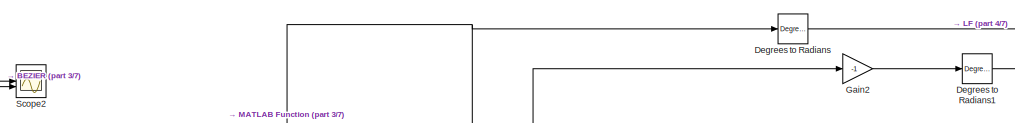
[diagram: root canvas - part 1/7, top center region]
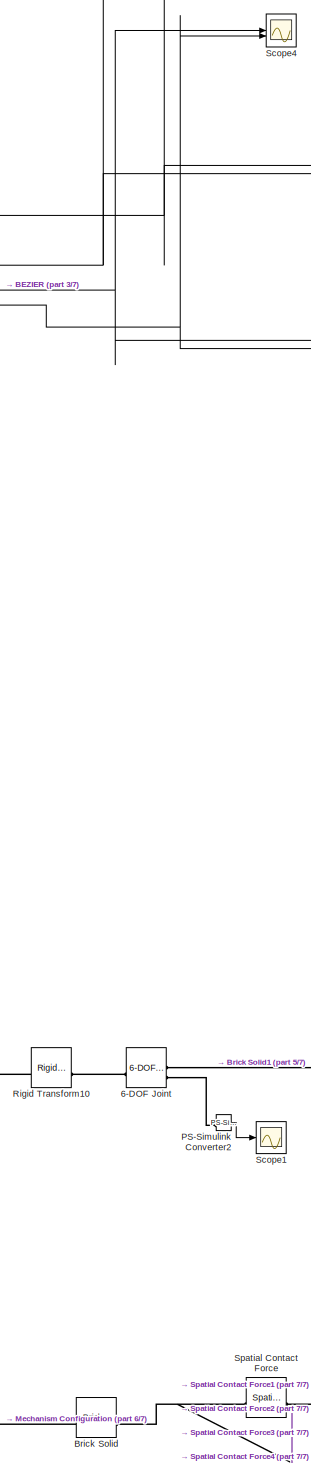
[diagram: root canvas - part 2/7, middle left region]
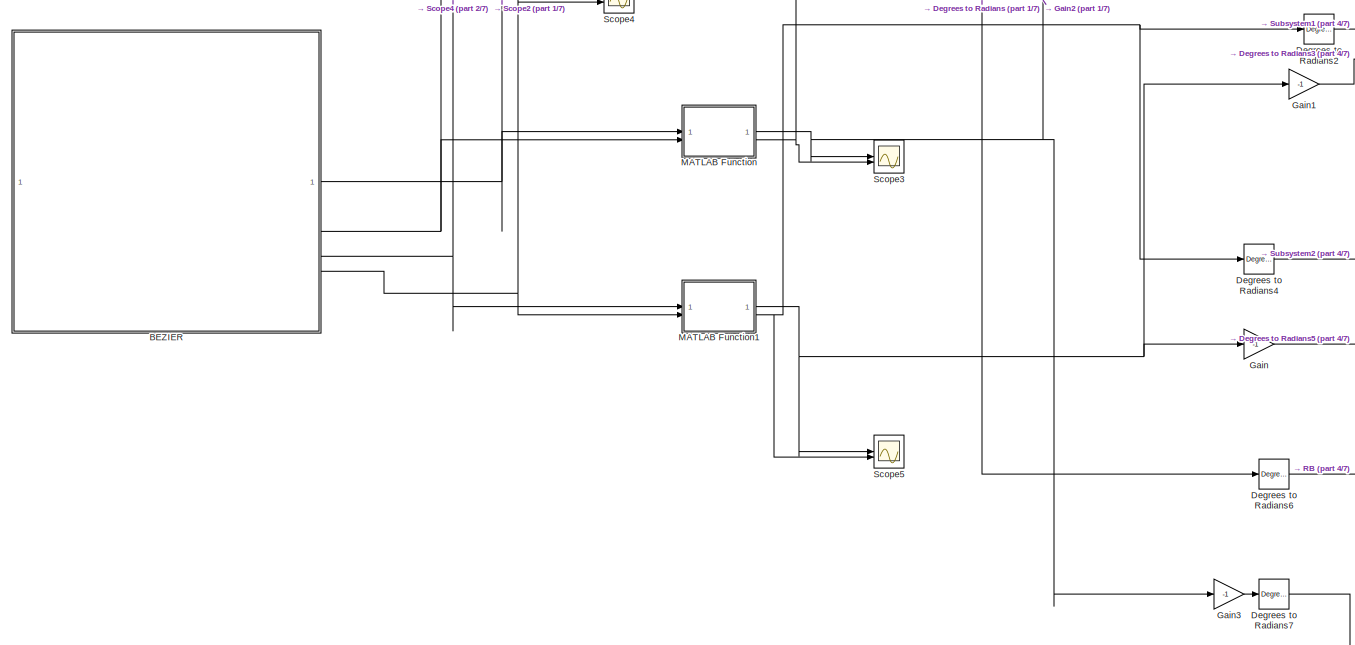
[diagram: root canvas - part 3/7, top left region]
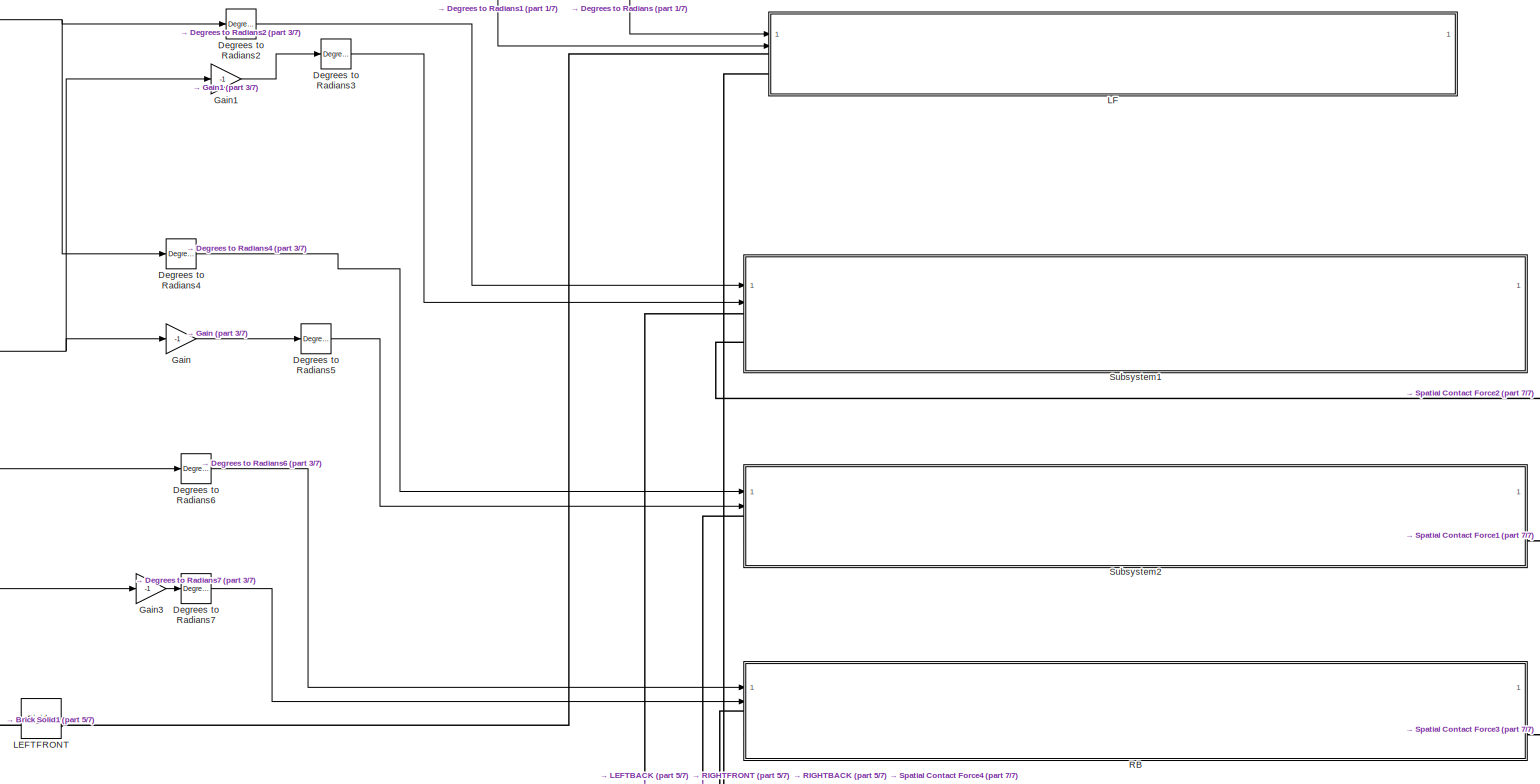
[diagram: root canvas - part 4/7, top center region]
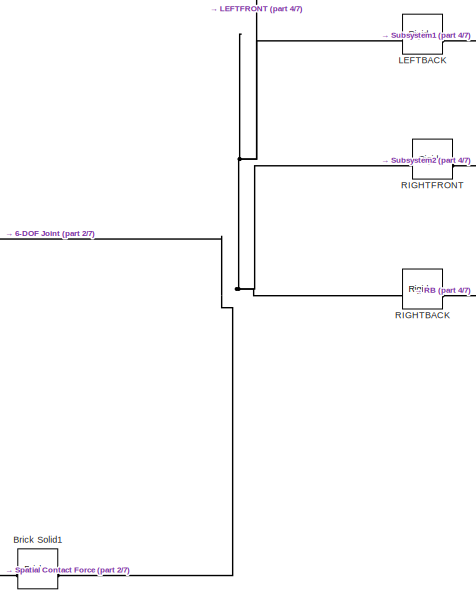
[diagram: root canvas - part 5/7, middle left region]
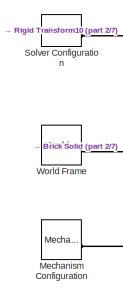
[diagram: root canvas - part 6/7, middle left region]
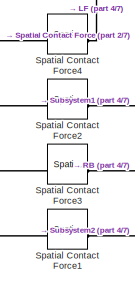
[diagram: root canvas - part 7/7, bottom center region]
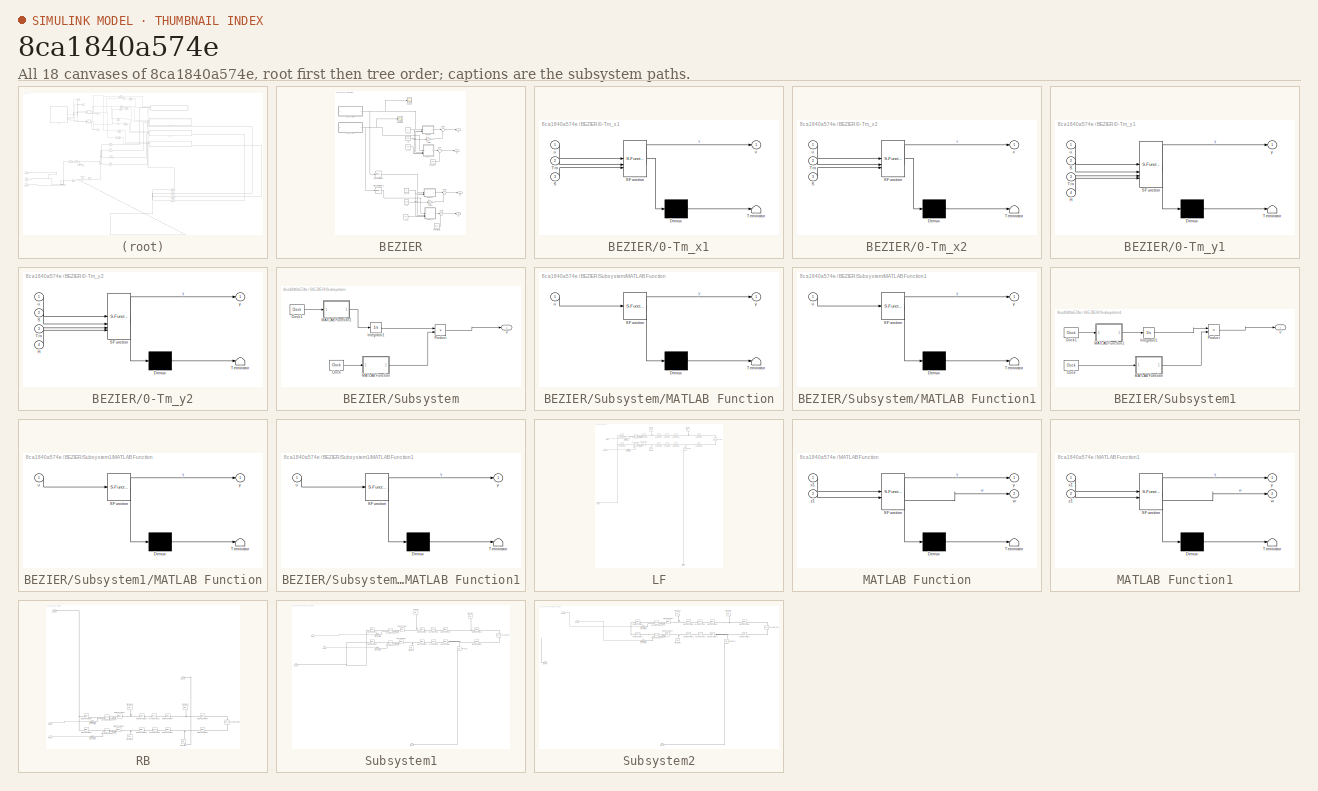
[diagram: thumbnail index - all 18 canvases of the model, root first then tree order]
MODEL slx_8ca1840a574e
KIND model
CONFIG AbsTol = auto
CONFIG EnableMultiTasking = off
CONFIG FixedStep = auto
CONFIG MaxStep = auto
CONFIG MinStep = auto
CONFIG RelTol = 1e-3
CONFIG SampleTimeConstraint = Unconstrained
CONFIG SolverName = VariableStepAuto
CONFIG StartTime = 0.0
CONFIG StopTime = 80.0
BLOCK [Reference] 6-DOF Joint  REF=sm_lib/Joints/6-DOF Joint
  SourceBlock = sm_lib/Joints/6-DOF Joint
  SourceType = 6-DOF Joint
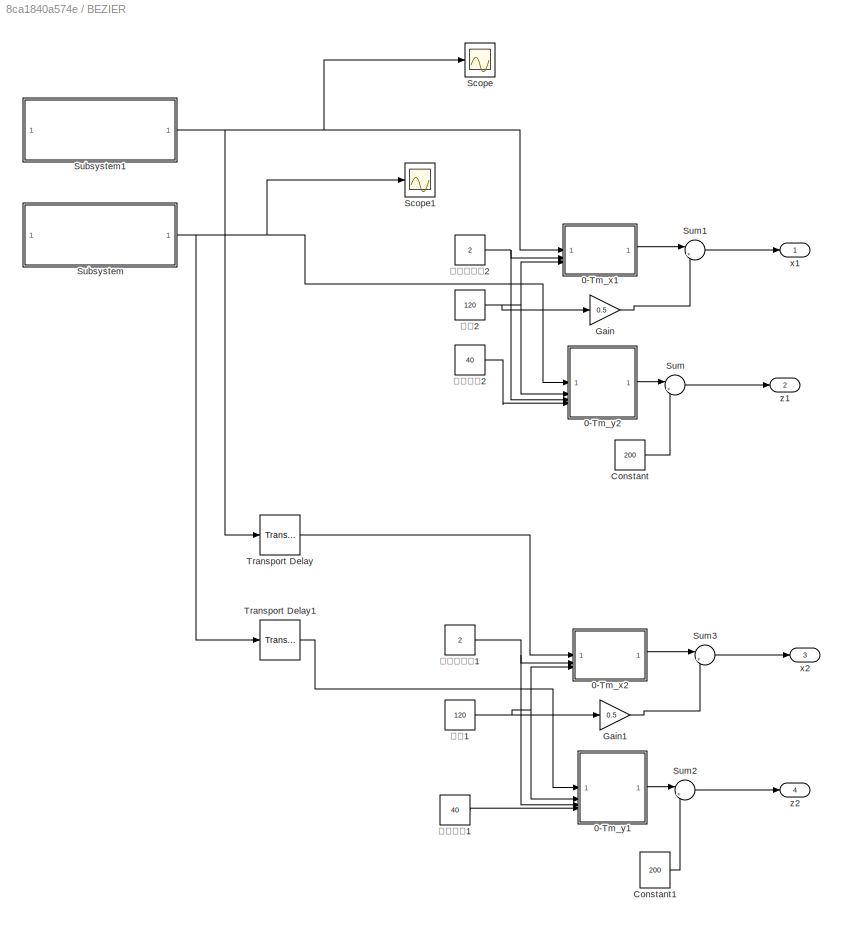
BLOCK [SubSystem] BEZIER
BLOCK [SubSystem] BEZIER/0-Tm_x1
  ErrorFcn = Stateflow.Translate.translate
  PermitHierarchicalResolution = ExplicitOnly
  SFBlockType = MATLAB Function
  TreatAsAtomicUnit = on
BLOCK [Demux] BEZIER/0-Tm_x1/ Demux 
  Outputs = 1
BLOCK [S-Function] BEZIER/0-Tm_x1/ SFunction 
  EnableBusSupport = on
  FunctionName = sf_sfun
  PortCounts = [3 2]
  SFcnIsStateOwnerBlock = off
  SFunctionDeploymentMode = off
  Tag = Stateflow S-Function 1
BLOCK [Terminator] BEZIER/0-Tm_x1/ Terminator 
BLOCK [Inport] BEZIER/0-Tm_x1/S
  Port = 3
BLOCK [Inport] BEZIER/0-Tm_x1/Tm
  Port = 2
BLOCK [Inport] BEZIER/0-Tm_x1/u
BLOCK [Outport] BEZIER/0-Tm_x1/x
  VectorParamsAs1DForOutWhenUnconnected = off
BLOCK [SubSystem] BEZIER/0-Tm_x2
  ErrorFcn = Stateflow.Translate.translate
  PermitHierarchicalResolution = ExplicitOnly
  SFBlockType = MATLAB Function
  TreatAsAtomicUnit = on
BLOCK [Demux] BEZIER/0-Tm_x2/ Demux 
  Outputs = 1
BLOCK [S-Function] BEZIER/0-Tm_x2/ SFunction 
  EnableBusSupport = on
  FunctionName = sf_sfun
  PortCounts = [3 2]
  SFcnIsStateOwnerBlock = off
  SFunctionDeploymentMode = off
  Tag = Stateflow S-Function 4
BLOCK [Terminator] BEZIER/0-Tm_x2/ Terminator 
BLOCK [Inport] BEZIER/0-Tm_x2/S
  Port = 3
BLOCK [Inport] BEZIER/0-Tm_x2/Tm
  Port = 2
BLOCK [Inport] BEZIER/0-Tm_x2/u
BLOCK [Outport] BEZIER/0-Tm_x2/x
  VectorParamsAs1DForOutWhenUnconnected = off
BLOCK [SubSystem] BEZIER/0-Tm_y1
  ErrorFcn = Stateflow.Translate.translate
  PermitHierarchicalResolution = ExplicitOnly
  SFBlockType = MATLAB Function
  TreatAsAtomicUnit = on
BLOCK [Demux] BEZIER/0-Tm_y1/ Demux 
  Outputs = 1
BLOCK [S-Function] BEZIER/0-Tm_y1/ SFunction 
  EnableBusSupport = on
  FunctionName = sf_sfun
  PortCounts = [4 2]
  SFcnIsStateOwnerBlock = off
  SFunctionDeploymentMode = off
  Tag = Stateflow S-Function 5
BLOCK [Terminator] BEZIER/0-Tm_y1/ Terminator 
BLOCK [Inport] BEZIER/0-Tm_y1/H
  Port = 4
BLOCK [Inport] BEZIER/0-Tm_y1/S
  Port = 2
BLOCK [Inport] BEZIER/0-Tm_y1/Tm
  Port = 3
BLOCK [Inport] BEZIER/0-Tm_y1/u
BLOCK [Outport] BEZIER/0-Tm_y1/y
  VectorParamsAs1DForOutWhenUnconnected = off
BLOCK [SubSystem] BEZIER/0-Tm_y2
  ErrorFcn = Stateflow.Translate.translate
  PermitHierarchicalResolution = ExplicitOnly
  SFBlockType = MATLAB Function
  TreatAsAtomicUnit = on
BLOCK [Demux] BEZIER/0-Tm_y2/ Demux 
  Outputs = 1
BLOCK [S-Function] BEZIER/0-Tm_y2/ SFunction 
  EnableBusSupport = on
  FunctionName = sf_sfun
  PortCounts = [4 2]
  SFcnIsStateOwnerBlock = off
  SFunctionDeploymentMode = off
  Tag = Stateflow S-Function 2
BLOCK [Terminator] BEZIER/0-Tm_y2/ Terminator 
BLOCK [Inport] BEZIER/0-Tm_y2/H
  Port = 4
BLOCK [Inport] BEZIER/0-Tm_y2/S
  Port = 2
BLOCK [Inport] BEZIER/0-Tm_y2/Tm
  Port = 3
BLOCK [Inport] BEZIER/0-Tm_y2/u
BLOCK [Outport] BEZIER/0-Tm_y2/y
  VectorParamsAs1DForOutWhenUnconnected = off
BLOCK [Constant] BEZIER/Constant
  Value = 200
BLOCK [Constant] BEZIER/Constant1
  Value = 200
BLOCK [Gain] BEZIER/Gain
  Gain = 0.5
BLOCK [Gain] BEZIER/Gain1
  Gain = 0.5
BLOCK [Scope] BEZIER/Scope
  Floating = off
  NumInputPorts = 1
  ScopeSpecificationString = Simulink.scopes.TimeScopeBlockCfg('CurrentConfiguration', extmgr.ConfigurationSet(extmgr.Configuration('Core','General UI',true),extmgr.Configuration('Core','Source UI',true),extmgr.Configuration('Sources','WiredSimulink',true,'DataLoggingVariableName','ScopeData1'),extmgr.Configuration('Visuals','Time Domain',true,'SerializedDisplays',{struct('MinYLimReal','-2.5','MaxYLimReal','2.5','YLabelReal',...<+1412ch>
BLOCK [Scope] BEZIER/Scope1
  Floating = off
  NumInputPorts = 1
  ScopeSpecificationString = Simulink.scopes.TimeScopeBlockCfg('CurrentConfiguration', extmgr.ConfigurationSet(extmgr.Configuration('Core','General UI',true),extmgr.Configuration('Core','Source UI',true),extmgr.Configuration('Sources','WiredSimulink',true,'DataLoggingVariableName','ScopeData2'),extmgr.Configuration('Visuals','Time Domain',true,'SerializedDisplays',{struct('MinYLimReal','-2.5','MaxYLimReal','2.5','YLabelReal',...<+1412ch>
BLOCK [SubSystem] BEZIER/Subsystem
BLOCK [Reference] BEZIER/Subsystem/Clock  REF=simulink_extras/Flip Flops/Clock
  SourceBlock = simulink_extras/Flip Flops/Clock
  SourceType = Digital clock
BLOCK [Reference] BEZIER/Subsystem/Clock1  REF=simulink_extras/Flip Flops/Clock
  SourceBlock = simulink_extras/Flip Flops/Clock
  SourceType = Digital clock
BLOCK [Integrator] BEZIER/Subsystem/Integrator1
BLOCK [SubSystem] BEZIER/Subsystem/MATLAB Function
  ErrorFcn = Stateflow.Translate.translate
  PermitHierarchicalResolution = ExplicitOnly
  SFBlockType = MATLAB Function
  TreatAsAtomicUnit = on
BLOCK [Demux] BEZIER/Subsystem/MATLAB Function/ Demux 
  Outputs = 1
BLOCK [S-Function] BEZIER/Subsystem/MATLAB Function/ SFunction 
  EnableBusSupport = on
  FunctionName = sf_sfun
  PortCounts = [1 2]
  SFcnIsStateOwnerBlock = off
  SFunctionDeploymentMode = off
  Tag = Stateflow S-Function 17
BLOCK [Terminator] BEZIER/Subsystem/MATLAB Function/ Terminator 
BLOCK [Inport] BEZIER/Subsystem/MATLAB Function/u
BLOCK [Outport] BEZIER/Subsystem/MATLAB Function/y
  VectorParamsAs1DForOutWhenUnconnected = off
BLOCK [SubSystem] BEZIER/Subsystem/MATLAB Function1
  ErrorFcn = Stateflow.Translate.translate
  PermitHierarchicalResolution = ExplicitOnly
  SFBlockType = MATLAB Function
  TreatAsAtomicUnit = on
BLOCK [Demux] BEZIER/Subsystem/MATLAB Function1/ Demux 
  Outputs = 1
BLOCK [S-Function] BEZIER/Subsystem/MATLAB Function1/ SFunction 
  EnableBusSupport = on
  FunctionName = sf_sfun
  PortCounts = [1 2]
  SFcnIsStateOwnerBlock = off
  SFunctionDeploymentMode = off
  Tag = Stateflow S-Function 18
BLOCK [Terminator] BEZIER/Subsystem/MATLAB Function1/ Terminator 
BLOCK [Inport] BEZIER/Subsystem/MATLAB Function1/u
BLOCK [Outport] BEZIER/Subsystem/MATLAB Function1/y
  VectorParamsAs1DForOutWhenUnconnected = off
BLOCK [Product] BEZIER/Subsystem/Product
BLOCK [Outport] BEZIER/Subsystem/u
  VectorParamsAs1DForOutWhenUnconnected = off
BLOCK [SubSystem] BEZIER/Subsystem1
BLOCK [Reference] BEZIER/Subsystem1/Clock  REF=simulink_extras/Flip Flops/Clock
  SourceBlock = simulink_extras/Flip Flops/Clock
  SourceType = Digital clock
BLOCK [Reference] BEZIER/Subsystem1/Clock1  REF=simulink_extras/Flip Flops/Clock
  SourceBlock = simulink_extras/Flip Flops/Clock
  SourceType = Digital clock
BLOCK [Integrator] BEZIER/Subsystem1/Integrator1
BLOCK [SubSystem] BEZIER/Subsystem1/MATLAB Function
  ErrorFcn = Stateflow.Translate.translate
  PermitHierarchicalResolution = ExplicitOnly
  SFBlockType = MATLAB Function
  TreatAsAtomicUnit = on
BLOCK [Demux] BEZIER/Subsystem1/MATLAB Function/ Demux 
  Outputs = 1
BLOCK [S-Function] BEZIER/Subsystem1/MATLAB Function/ SFunction 
  EnableBusSupport = on
  FunctionName = sf_sfun
  PortCounts = [1 2]
  SFcnIsStateOwnerBlock = off
  SFunctionDeploymentMode = off
  Tag = Stateflow S-Function 19
BLOCK [Terminator] BEZIER/Subsystem1/MATLAB Function/ Terminator 
BLOCK [Inport] BEZIER/Subsystem1/MATLAB Function/u
BLOCK [Outport] BEZIER/Subsystem1/MATLAB Function/y
  VectorParamsAs1DForOutWhenUnconnected = off
BLOCK [SubSystem] BEZIER/Subsystem1/MATLAB Function1
  ErrorFcn = Stateflow.Translate.translate
  PermitHierarchicalResolution = ExplicitOnly
  SFBlockType = MATLAB Function
  TreatAsAtomicUnit = on
BLOCK [Demux] BEZIER/Subsystem1/MATLAB Function1/ Demux 
  Outputs = 1
BLOCK [S-Function] BEZIER/Subsystem1/MATLAB Function1/ SFunction 
  EnableBusSupport = on
  FunctionName = sf_sfun
  PortCounts = [1 2]
  SFcnIsStateOwnerBlock = off
  SFunctionDeploymentMode = off
  Tag = Stateflow S-Function 20
BLOCK [Terminator] BEZIER/Subsystem1/MATLAB Function1/ Terminator 
BLOCK [Inport] BEZIER/Subsystem1/MATLAB Function1/u
BLOCK [Outport] BEZIER/Subsystem1/MATLAB Function1/y
  VectorParamsAs1DForOutWhenUnconnected = off
BLOCK [Product] BEZIER/Subsystem1/Product
BLOCK [Outport] BEZIER/Subsystem1/u
  VectorParamsAs1DForOutWhenUnconnected = off
BLOCK [Sum] BEZIER/Sum
  Inputs = |+-
BLOCK [Sum] BEZIER/Sum1
  Inputs = |+-
BLOCK [Sum] BEZIER/Sum2
  Inputs = |+-
BLOCK [Sum] BEZIER/Sum3
  Inputs = |+-
BLOCK [TransportDelay] BEZIER/Transport Delay
  DelayTime = T
BLOCK [TransportDelay] BEZIER/Transport Delay1
  DelayTime = T
BLOCK [Outport] BEZIER/x1
  VectorParamsAs1DForOutWhenUnconnected = off
BLOCK [Outport] BEZIER/x2
  Port = 3
  VectorParamsAs1DForOutWhenUnconnected = off
BLOCK [Outport] BEZIER/z1
  Port = 2
  VectorParamsAs1DForOutWhenUnconnected = off
BLOCK [Outport] BEZIER/z2
  Port = 4
  VectorParamsAs1DForOutWhenUnconnected = off
BLOCK [Constant] BEZIER/抬腿高度1
  Value = 40
BLOCK [Constant] BEZIER/抬腿高度2
  Value = 40
BLOCK [Constant] BEZIER/摆动相周期1
  Value = 2
BLOCK [Constant] BEZIER/摆动相周期2
  Value = 2
BLOCK [Constant] BEZIER/步长1
  Value = 120
BLOCK [Constant] BEZIER/步长2
  Value = 120
BLOCK [Reference] Brick Solid  REF=sm_lib/Body Elements/Brick Solid
  NameLocation = top
  SourceBlock = sm_lib/Body Elements/Brick Solid
  SourceType = Brick Solid
BLOCK [Reference] Brick Solid1  REF=sm_lib/Body Elements/Brick Solid
  SourceBlock = sm_lib/Body Elements/Brick Solid
  SourceType = Brick Solid
BLOCK [Reference] Degrees to Radians  REF=simulink_extras/Transformations/Degrees to
Radians
  SourceBlock = simulink_extras/Transformations/Degrees to\nRadians
  SourceType = DegreesToRadians
BLOCK [Reference] Degrees to Radians1  REF=simulink_extras/Transformations/Degrees to
Radians
  SourceBlock = simulink_extras/Transformations/Degrees to\nRadians
  SourceType = DegreesToRadians
BLOCK [Reference] Degrees to Radians2  REF=simulink_extras/Transformations/Degrees to
Radians
  SourceBlock = simulink_extras/Transformations/Degrees to\nRadians
  SourceType = DegreesToRadians
BLOCK [Reference] Degrees to Radians3  REF=simulink_extras/Transformations/Degrees to
Radians
  SourceBlock = simulink_extras/Transformations/Degrees to\nRadians
  SourceType = DegreesToRadians
BLOCK [Reference] Degrees to Radians4  REF=simulink_extras/Transformations/Degrees to
Radians
  SourceBlock = simulink_extras/Transformations/Degrees to\nRadians
  SourceType = DegreesToRadians
BLOCK [Reference] Degrees to Radians5  REF=simulink_extras/Transformations/Degrees to
Radians
  SourceBlock = simulink_extras/Transformations/Degrees to\nRadians
  SourceType = DegreesToRadians
BLOCK [Reference] Degrees to Radians6  REF=simulink_extras/Transformations/Degrees to
Radians
  SourceBlock = simulink_extras/Transformations/Degrees to\nRadians
  SourceType = DegreesToRadians
BLOCK [Reference] Degrees to Radians7  REF=simulink_extras/Transformations/Degrees to
Radians
  SourceBlock = simulink_extras/Transformations/Degrees to\nRadians
  SourceType = DegreesToRadians
BLOCK [Gain] Gain
  Gain = -1
BLOCK [Gain] Gain1
  Gain = -1
BLOCK [Gain] Gain2
  Gain = -1
BLOCK [Gain] Gain3
  Gain = -1
BLOCK [Reference] LEFTBACK  REF=sm_lib/Frames and
Transforms/Rigid
Transform
  SourceBlock = sm_lib/Frames and\nTransforms/Rigid\nTransform
  SourceType = Rigid\nTransform
BLOCK [Reference] LEFTFRONT  REF=sm_lib/Frames and
Transforms/Rigid
Transform
  SourceBlock = sm_lib/Frames and\nTransforms/Rigid\nTransform
  SourceType = Rigid\nTransform
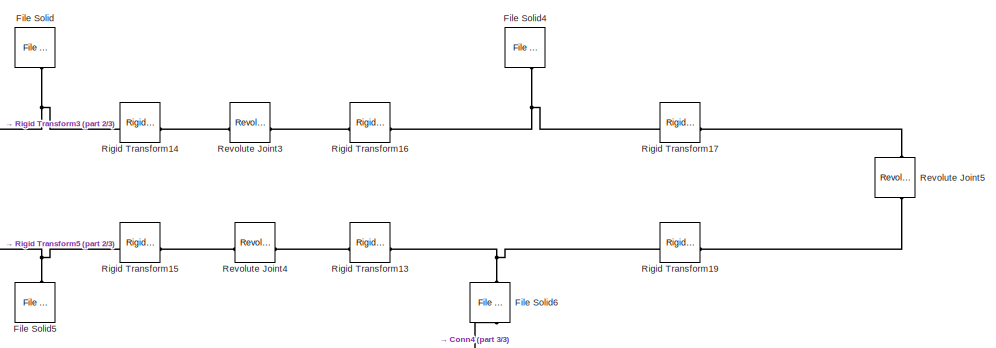
[diagram: LF - part 1/3, top right region]
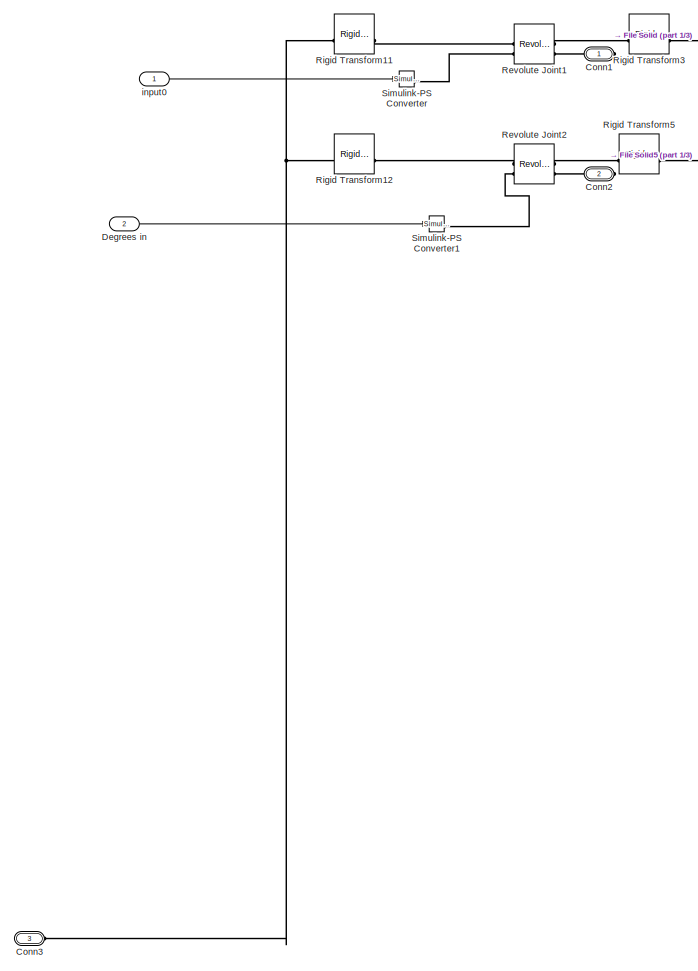
[diagram: LF - part 2/3, top left region]
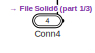
[diagram: LF - part 3/3, bottom right region]
BLOCK [SubSystem] LF
BLOCK [PMIOPort] LF/Conn1
  Side = Right
BLOCK [PMIOPort] LF/Conn2
  Port = 2
  Side = Right
BLOCK [PMIOPort] LF/Conn3
  Port = 3
  Side = Left
BLOCK [PMIOPort] LF/Conn4
  Port = 4
  Side = Left
BLOCK [Inport] LF/Degrees in
  Port = 2
BLOCK [Reference] LF/File Solid  REF=sm_lib/Body Elements/File Solid
  NameLocation = left
  SourceBlock = sm_lib/Body Elements/File Solid
  SourceType = File Solid
BLOCK [Reference] LF/File Solid4  REF=sm_lib/Body Elements/File Solid
  NameLocation = left
  SourceBlock = sm_lib/Body Elements/File Solid
  SourceType = File Solid
BLOCK [Reference] LF/File Solid5  REF=sm_lib/Body Elements/File Solid
  NameLocation = right
  SourceBlock = sm_lib/Body Elements/File Solid
  SourceType = File Solid
BLOCK [Reference] LF/File Solid6  REF=sm_lib/Body Elements/File Solid
  NameLocation = right
  SourceBlock = sm_lib/Body Elements/File Solid
  SourceType = File Solid
BLOCK [Reference] LF/Revolute Joint1  REF=sm_lib/Joints/Revolute Joint
  SourceBlock = sm_lib/Joints/Revolute Joint
  SourceType = Revolute Joint
BLOCK [Reference] LF/Revolute Joint2  REF=sm_lib/Joints/Revolute Joint
  SourceBlock = sm_lib/Joints/Revolute Joint
  SourceType = Revolute Joint
BLOCK [Reference] LF/Revolute Joint3  REF=sm_lib/Joints/Revolute Joint
  SourceBlock = sm_lib/Joints/Revolute Joint
  SourceType = Revolute Joint
BLOCK [Reference] LF/Revolute Joint4  REF=sm_lib/Joints/Revolute Joint
  SourceBlock = sm_lib/Joints/Revolute Joint
  SourceType = Revolute Joint
BLOCK [Reference] LF/Revolute Joint5  REF=sm_lib/Joints/Revolute Joint
  NameLocation = right
  SourceBlock = sm_lib/Joints/Revolute Joint
  SourceType = Revolute Joint
BLOCK [Reference] LF/Rigid Transform11  REF=sm_lib/Frames and
Transforms/Rigid
Transform
  SourceBlock = sm_lib/Frames and\nTransforms/Rigid\nTransform
  SourceType = Rigid\nTransform
BLOCK [Reference] LF/Rigid Transform12  REF=sm_lib/Frames and
Transforms/Rigid
Transform
  SourceBlock = sm_lib/Frames and\nTransforms/Rigid\nTransform
  SourceType = Rigid\nTransform
BLOCK [Reference] LF/Rigid Transform13  REF=sm_lib/Frames and
Transforms/Rigid
Transform
  SourceBlock = sm_lib/Frames and\nTransforms/Rigid\nTransform
  SourceType = Rigid\nTransform
BLOCK [Reference] LF/Rigid Transform14  REF=sm_lib/Frames and
Transforms/Rigid
Transform
  SourceBlock = sm_lib/Frames and\nTransforms/Rigid\nTransform
  SourceType = Rigid\nTransform
BLOCK [Reference] LF/Rigid Transform15  REF=sm_lib/Frames and
Transforms/Rigid
Transform
  SourceBlock = sm_lib/Frames and\nTransforms/Rigid\nTransform
  SourceType = Rigid\nTransform
BLOCK [Reference] LF/Rigid Transform16  REF=sm_lib/Frames and
Transforms/Rigid
Transform
  SourceBlock = sm_lib/Frames and\nTransforms/Rigid\nTransform
  SourceType = Rigid\nTransform
BLOCK [Reference] LF/Rigid Transform17  REF=sm_lib/Frames and
Transforms/Rigid
Transform
  SourceBlock = sm_lib/Frames and\nTransforms/Rigid\nTransform
  SourceType = Rigid\nTransform
BLOCK [Reference] LF/Rigid Transform19  REF=sm_lib/Frames and
Transforms/Rigid
Transform
  SourceBlock = sm_lib/Frames and\nTransforms/Rigid\nTransform
  SourceType = Rigid\nTransform
BLOCK [Reference] LF/Rigid Transform3  REF=sm_lib/Frames and
Transforms/Rigid
Transform
  SourceBlock = sm_lib/Frames and\nTransforms/Rigid\nTransform
  SourceType = Rigid\nTransform
BLOCK [Reference] LF/Rigid Transform5  REF=sm_lib/Frames and
Transforms/Rigid
Transform
  SourceBlock = sm_lib/Frames and\nTransforms/Rigid\nTransform
  SourceType = Rigid\nTransform
BLOCK [Reference] LF/Simulink-PS Converter  REF=nesl_utility/Simulink-PS
Converter
  SourceBlock = nesl_utility/Simulink-PS\nConverter
  SourceType = Simulink-PS\nConverter
BLOCK [Reference] LF/Simulink-PS Converter1  REF=nesl_utility/Simulink-PS
Converter
  SourceBlock = nesl_utility/Simulink-PS\nConverter
  SourceType = Simulink-PS\nConverter
BLOCK [Inport] LF/input0
BLOCK [SubSystem] MATLAB Function
  ErrorFcn = Stateflow.Translate.translate
  PermitHierarchicalResolution = ExplicitOnly
  SFBlockType = MATLAB Function
  TreatAsAtomicUnit = on
BLOCK [Demux] MATLAB Function/ Demux 
  Outputs = 1
BLOCK [S-Function] MATLAB Function/ SFunction 
  EnableBusSupport = on
  FunctionName = sf_sfun
  PortCounts = [2 3]
  SFcnIsStateOwnerBlock = off
  SFunctionDeploymentMode = off
  Tag = Stateflow S-Function 3
BLOCK [Terminator] MATLAB Function/ Terminator 
BLOCK [Outport] MATLAB Function/w
  Port = 2
BLOCK [Inport] MATLAB Function/x1
BLOCK [Outport] MATLAB Function/y
  VectorParamsAs1DForOutWhenUnconnected = off
BLOCK [Inport] MATLAB Function/z1
  Port = 2
BLOCK [SubSystem] MATLAB Function1
  ErrorFcn = Stateflow.Translate.translate
  PermitHierarchicalResolution = ExplicitOnly
  SFBlockType = MATLAB Function
  TreatAsAtomicUnit = on
BLOCK [Demux] MATLAB Function1/ Demux 
  Outputs = 1
BLOCK [S-Function] MATLAB Function1/ SFunction 
  EnableBusSupport = on
  FunctionName = sf_sfun
  PortCounts = [2 3]
  SFcnIsStateOwnerBlock = off
  SFunctionDeploymentMode = off
  Tag = Stateflow S-Function 10
BLOCK [Terminator] MATLAB Function1/ Terminator 
BLOCK [Outport] MATLAB Function1/w
  Port = 2
BLOCK [Inport] MATLAB Function1/x1
BLOCK [Outport] MATLAB Function1/y
  VectorParamsAs1DForOutWhenUnconnected = off
BLOCK [Inport] MATLAB Function1/z1
  Port = 2
BLOCK [Reference] Mechanism Configuration  REF=sm_lib/Utilities/Mechanism
Configuration
  SourceBlock = sm_lib/Utilities/Mechanism\nConfiguration
  SourceType = Mechanism\nConfiguration
BLOCK [Reference] PS-Simulink Converter2  REF=nesl_utility/PS-Simulink
Converter
  SourceBlock = nesl_utility/PS-Simulink\nConverter
  SourceType = PS-Simulink\nConverter
BLOCK [SubSystem] RB
BLOCK [PMIOPort] RB/Conn1
  Side = Left
BLOCK [PMIOPort] RB/Conn2
  Port = 2
  Side = Left
BLOCK [PMIOPort] RB/Conn3
  Port = 3
  Side = Right
BLOCK [PMIOPort] RB/Conn4
  Port = 4
  Side = Right
BLOCK [Reference] RB/File Solid16  REF=sm_lib/Body Elements/File Solid
  NameLocation = right
  SourceBlock = sm_lib/Body Elements/File Solid
  SourceType = File Solid
BLOCK [Reference] RB/File Solid17  REF=sm_lib/Body Elements/File Solid
  NameLocation = right
  SourceBlock = sm_lib/Body Elements/File Solid
  SourceType = File Solid
BLOCK [Reference] RB/File Solid18  REF=sm_lib/Body Elements/File Solid
  NameLocation = left
  SourceBlock = sm_lib/Body Elements/File Solid
  SourceType = File Solid
BLOCK [Reference] RB/File Solid19  REF=sm_lib/Body Elements/File Solid
  NameLocation = left
  SourceBlock = sm_lib/Body Elements/File Solid
  SourceType = File Solid
BLOCK [Reference] RB/Revolute Joint16  REF=sm_lib/Joints/Revolute Joint
  NameLocation = right
  SourceBlock = sm_lib/Joints/Revolute Joint
  SourceType = Revolute Joint
BLOCK [Reference] RB/Revolute Joint17  REF=sm_lib/Joints/Revolute Joint
  SourceBlock = sm_lib/Joints/Revolute Joint
  SourceType = Revolute Joint
BLOCK [Reference] RB/Revolute Joint18  REF=sm_lib/Joints/Revolute Joint
  SourceBlock = sm_lib/Joints/Revolute Joint
  SourceType = Revolute Joint
BLOCK [Reference] RB/Revolute Joint19  REF=sm_lib/Joints/Revolute Joint
  SourceBlock = sm_lib/Joints/Revolute Joint
  SourceType = Revolute Joint
BLOCK [Reference] RB/Revolute Joint20  REF=sm_lib/Joints/Revolute Joint
  SourceBlock = sm_lib/Joints/Revolute Joint
  SourceType = Revolute Joint
BLOCK [Reference] RB/Rigid Transform39  REF=sm_lib/Frames and
Transforms/Rigid
Transform
  SourceBlock = sm_lib/Frames and\nTransforms/Rigid\nTransform
  SourceType = Rigid\nTransform
BLOCK [Reference] RB/Rigid Transform40  REF=sm_lib/Frames and
Transforms/Rigid
Transform
  SourceBlock = sm_lib/Frames and\nTransforms/Rigid\nTransform
  SourceType = Rigid\nTransform
BLOCK [Reference] RB/Rigid Transform41  REF=sm_lib/Frames and
Transforms/Rigid
Transform
  SourceBlock = sm_lib/Frames and\nTransforms/Rigid\nTransform
  SourceType = Rigid\nTransform
BLOCK [Reference] RB/Rigid Transform42  REF=sm_lib/Frames and
Transforms/Rigid
Transform
  SourceBlock = sm_lib/Frames and\nTransforms/Rigid\nTransform
  SourceType = Rigid\nTransform
BLOCK [Reference] RB/Rigid Transform43  REF=sm_lib/Frames and
Transforms/Rigid
Transform
  SourceBlock = sm_lib/Frames and\nTransforms/Rigid\nTransform
  SourceType = Rigid\nTransform
BLOCK [Reference] RB/Rigid Transform44  REF=sm_lib/Frames and
Transforms/Rigid
Transform
  SourceBlock = sm_lib/Frames and\nTransforms/Rigid\nTransform
  SourceType = Rigid\nTransform
BLOCK [Reference] RB/Rigid Transform45  REF=sm_lib/Frames and
Transforms/Rigid
Transform
  SourceBlock = sm_lib/Frames and\nTransforms/Rigid\nTransform
  SourceType = Rigid\nTransform
BLOCK [Reference] RB/Rigid Transform46  REF=sm_lib/Frames and
Transforms/Rigid
Transform
  SourceBlock = sm_lib/Frames and\nTransforms/Rigid\nTransform
  SourceType = Rigid\nTransform
BLOCK [Reference] RB/Rigid Transform47  REF=sm_lib/Frames and
Transforms/Rigid
Transform
  SourceBlock = sm_lib/Frames and\nTransforms/Rigid\nTransform
  SourceType = Rigid\nTransform
BLOCK [Reference] RB/Rigid Transform48  REF=sm_lib/Frames and
Transforms/Rigid
Transform
  SourceBlock = sm_lib/Frames and\nTransforms/Rigid\nTransform
  SourceType = Rigid\nTransform
BLOCK [Reference] RB/Simulink-PS Converter6  REF=nesl_utility/Simulink-PS
Converter
  SourceBlock = nesl_utility/Simulink-PS\nConverter
  SourceType = Simulink-PS\nConverter
BLOCK [Reference] RB/Simulink-PS Converter7  REF=nesl_utility/Simulink-PS
Converter
  SourceBlock = nesl_utility/Simulink-PS\nConverter
  SourceType = Simulink-PS\nConverter
BLOCK [Inport] RB/input0
BLOCK [Inport] RB/input1
  Port = 2
BLOCK [Reference] RIGHTBACK  REF=sm_lib/Frames and
Transforms/Rigid
Transform
  SourceBlock = sm_lib/Frames and\nTransforms/Rigid\nTransform
  SourceType = Rigid\nTransform
BLOCK [Reference] RIGHTFRONT  REF=sm_lib/Frames and
Transforms/Rigid
Transform
  SourceBlock = sm_lib/Frames and\nTransforms/Rigid\nTransform
  SourceType = Rigid\nTransform
BLOCK [Reference] Rigid Transform10  REF=sm_lib/Frames and
Transforms/Rigid
Transform
  Commented = through
  SourceBlock = sm_lib/Frames and\nTransforms/Rigid\nTransform
  SourceType = Rigid\nTransform
BLOCK [Scope] Scope1
  Floating = off
  NumInputPorts = 1
  ScopeSpecificationString = Simulink.scopes.TimeScopeBlockCfg('CurrentConfiguration', extmgr.ConfigurationSet(extmgr.Configuration('Core','General UI',true),extmgr.Configuration('Core','Source UI',true),extmgr.Configuration('Sources','WiredSimulink',true,'DataLoggingVariableName','ScopeData1'),extmgr.Configuration('Visuals','Time Domain',true,'SerializedDisplays',{struct('MinYLimReal','0.19682','MaxYLimReal','0.53369','YLabe...<+1444ch>
BLOCK [Scope] Scope2
  Floating = off
  NumInputPorts = 2
  ScopeSpecificationString = Simulink.scopes.TimeScopeBlockCfg('CurrentConfiguration', extmgr.ConfigurationSet(extmgr.Configuration('Core','General UI',true),extmgr.Configuration('Core','Source UI',true),extmgr.Configuration('Sources','WiredSimulink',true,'DataLoggingVariableName','ScopeData1'),extmgr.Configuration('Visuals','Time Domain',true,'SerializedDisplays',{struct('MinYLimReal','-200.00000','MaxYLimReal','100.00000','...<+1485ch>
BLOCK [Scope] Scope3
  Floating = off
  NumInputPorts = 2
  ScopeSpecificationString = Simulink.scopes.TimeScopeBlockCfg('CurrentConfiguration', extmgr.ConfigurationSet(extmgr.Configuration('Core','General UI',true),extmgr.Configuration('Core','Source UI',true),extmgr.Configuration('Sources','WiredSimulink',true,'DataLoggingVariableName','ScopeData2'),extmgr.Configuration('Visuals','Time Domain',true,'SerializedDisplays',{struct('MinYLimReal','42.62894','MaxYLimReal','84.21536','YLa...<+1483ch>
BLOCK [Scope] Scope4
  Floating = off
  NumInputPorts = 2
  ScopeSpecificationString = Simulink.scopes.TimeScopeBlockCfg('CurrentConfiguration', extmgr.ConfigurationSet(extmgr.Configuration('Core','General UI',true),extmgr.Configuration('Core','Source UI',true),extmgr.Configuration('Sources','WiredSimulink',true,'DataLoggingVariableName','ScopeData3'),extmgr.Configuration('Visuals','Time Domain',true,'SerializedDisplays',{struct('MinYLimReal','-200.00000','MaxYLimReal','100.00000','...<+1485ch>
BLOCK [Scope] Scope5
  Floating = off
  NumInputPorts = 2
  ScopeSpecificationString = Simulink.scopes.TimeScopeBlockCfg('CurrentConfiguration', extmgr.ConfigurationSet(extmgr.Configuration('Core','General UI',true),extmgr.Configuration('Core','Source UI',true),extmgr.Configuration('Sources','WiredSimulink',true,'DataLoggingVariableName','ScopeData4'),extmgr.Configuration('Visuals','Time Domain',true,'SerializedDisplays',{struct('MinYLimReal','42.62894','MaxYLimReal','84.21536','YLa...<+1483ch>
BLOCK [Reference] Solver Configuration  REF=nesl_utility/Solver
Configuration
  SourceBlock = nesl_utility/Solver\nConfiguration
  SourceType = Solver\nConfiguration
BLOCK [Reference] Spatial Contact Force  REF=sm_lib/Forces and
Torques/Spatial
Contact Force
  SourceBlock = sm_lib/Forces and\nTorques/Spatial\nContact Force
  SourceType = Spatial\nContact Force
BLOCK [Reference] Spatial Contact Force1  REF=sm_lib/Forces and
Torques/Spatial
Contact Force
  SourceBlock = sm_lib/Forces and\nTorques/Spatial\nContact Force
  SourceType = Spatial\nContact Force
BLOCK [Reference] Spatial Contact Force2  REF=sm_lib/Forces and
Torques/Spatial
Contact Force
  SourceBlock = sm_lib/Forces and\nTorques/Spatial\nContact Force
  SourceType = Spatial\nContact Force
BLOCK [Reference] Spatial Contact Force3  REF=sm_lib/Forces and
Torques/Spatial
Contact Force
  SourceBlock = sm_lib/Forces and\nTorques/Spatial\nContact Force
  SourceType = Spatial\nContact Force
BLOCK [Reference] Spatial Contact Force4  REF=sm_lib/Forces and
Torques/Spatial
Contact Force
  SourceBlock = sm_lib/Forces and\nTorques/Spatial\nContact Force
  SourceType = Spatial\nContact Force
BLOCK [SubSystem] Subsystem1
BLOCK [PMIOPort] Subsystem1/Conn1
  Side = Right
BLOCK [PMIOPort] Subsystem1/Conn2
  Port = 2
  Side = Right
BLOCK [PMIOPort] Subsystem1/Conn3
  Port = 3
  Side = Left
BLOCK [PMIOPort] Subsystem1/Conn4
  Port = 4
  Side = Left
BLOCK [Reference] Subsystem1/File Solid10  REF=sm_lib/Body Elements/File Solid
  NameLocation = right
  SourceBlock = sm_lib/Body Elements/File Solid
  SourceType = File Solid
BLOCK [Reference] Subsystem1/File Solid11  REF=sm_lib/Body Elements/File Solid
  NameLocation = right
  SourceBlock = sm_lib/Body Elements/File Solid
  SourceType = File Solid
BLOCK [Reference] Subsystem1/File Solid7  REF=sm_lib/Body Elements/File Solid
  NameLocation = left
  SourceBlock = sm_lib/Body Elements/File Solid
  SourceType = File Solid
BLOCK [Reference] Subsystem1/File Solid9  REF=sm_lib/Body Elements/File Solid
  NameLocation = left
  SourceBlock = sm_lib/Body Elements/File Solid
  SourceType = File Solid
BLOCK [Reference] Subsystem1/Revolute Joint10  REF=sm_lib/Joints/Revolute Joint
  NameLocation = right
  SourceBlock = sm_lib/Joints/Revolute Joint
  SourceType = Revolute Joint
BLOCK [Reference] Subsystem1/Revolute Joint6  REF=sm_lib/Joints/Revolute Joint
  SourceBlock = sm_lib/Joints/Revolute Joint
  SourceType = Revolute Joint
BLOCK [Reference] Subsystem1/Revolute Joint7  REF=sm_lib/Joints/Revolute Joint
  SourceBlock = sm_lib/Joints/Revolute Joint
  SourceType = Revolute Joint
BLOCK [Reference] Subsystem1/Revolute Joint8  REF=sm_lib/Joints/Revolute Joint
  SourceBlock = sm_lib/Joints/Revolute Joint
  SourceType = Revolute Joint
BLOCK [Reference] Subsystem1/Revolute Joint9  REF=sm_lib/Joints/Revolute Joint
  SourceBlock = sm_lib/Joints/Revolute Joint
  SourceType = Revolute Joint
BLOCK [Reference] Subsystem1/Rigid Transform18  REF=sm_lib/Frames and
Transforms/Rigid
Transform
  SourceBlock = sm_lib/Frames and\nTransforms/Rigid\nTransform
  SourceType = Rigid\nTransform
BLOCK [Reference] Subsystem1/Rigid Transform20  REF=sm_lib/Frames and
Transforms/Rigid
Transform
  SourceBlock = sm_lib/Frames and\nTransforms/Rigid\nTransform
  SourceType = Rigid\nTransform
BLOCK [Reference] Subsystem1/Rigid Transform21  REF=sm_lib/Frames and
Transforms/Rigid
Transform
  SourceBlock = sm_lib/Frames and\nTransforms/Rigid\nTransform
  SourceType = Rigid\nTransform
BLOCK [Reference] Subsystem1/Rigid Transform22  REF=sm_lib/Frames and
Transforms/Rigid
Transform
  SourceBlock = sm_lib/Frames and\nTransforms/Rigid\nTransform
  SourceType = Rigid\nTransform
BLOCK [Reference] Subsystem1/Rigid Transform23  REF=sm_lib/Frames and
Transforms/Rigid
Transform
  SourceBlock = sm_lib/Frames and\nTransforms/Rigid\nTransform
  SourceType = Rigid\nTransform
BLOCK [Reference] Subsystem1/Rigid Transform24  REF=sm_lib/Frames and
Transforms/Rigid
Transform
  SourceBlock = sm_lib/Frames and\nTransforms/Rigid\nTransform
  SourceType = Rigid\nTransform
BLOCK [Reference] Subsystem1/Rigid Transform25  REF=sm_lib/Frames and
Transforms/Rigid
Transform
  SourceBlock = sm_lib/Frames and\nTransforms/Rigid\nTransform
  SourceType = Rigid\nTransform
BLOCK [Reference] Subsystem1/Rigid Transform26  REF=sm_lib/Frames and
Transforms/Rigid
Transform
  SourceBlock = sm_lib/Frames and\nTransforms/Rigid\nTransform
  SourceType = Rigid\nTransform
BLOCK [Reference] Subsystem1/Rigid Transform27  REF=sm_lib/Frames and
Transforms/Rigid
Transform
  SourceBlock = sm_lib/Frames and\nTransforms/Rigid\nTransform
  SourceType = Rigid\nTransform
BLOCK [Reference] Subsystem1/Rigid Transform28  REF=sm_lib/Frames and
Transforms/Rigid
Transform
  SourceBlock = sm_lib/Frames and\nTransforms/Rigid\nTransform
  SourceType = Rigid\nTransform
BLOCK [Reference] Subsystem1/Simulink-PS Converter2  REF=nesl_utility/Simulink-PS
Converter
  SourceBlock = nesl_utility/Simulink-PS\nConverter
  SourceType = Simulink-PS\nConverter
BLOCK [Reference] Subsystem1/Simulink-PS Converter3  REF=nesl_utility/Simulink-PS
Converter
  SourceBlock = nesl_utility/Simulink-PS\nConverter
  SourceType = Simulink-PS\nConverter
BLOCK [Inport] Subsystem1/input0
BLOCK [Inport] Subsystem1/input1
  Port = 2
BLOCK [SubSystem] Subsystem2
BLOCK [PMIOPort] Subsystem2/Conn1
  Side = Right
BLOCK [PMIOPort] Subsystem2/Conn2
  Port = 2
  Side = Right
BLOCK [PMIOPort] Subsystem2/Conn3
  Port = 3
  Side = Left
BLOCK [PMIOPort] Subsystem2/Conn4
  Port = 4
  Side = Left
BLOCK [Reference] Subsystem2/File Solid12  REF=sm_lib/Body Elements/File Solid
  NameLocation = right
  SourceBlock = sm_lib/Body Elements/File Solid
  SourceType = File Solid
BLOCK [Reference] Subsystem2/File Solid13  REF=sm_lib/Body Elements/File Solid
  NameLocation = right
  SourceBlock = sm_lib/Body Elements/File Solid
  SourceType = File Solid
BLOCK [Reference] Subsystem2/File Solid14  REF=sm_lib/Body Elements/File Solid
  NameLocation = left
  SourceBlock = sm_lib/Body Elements/File Solid
  SourceType = File Solid
BLOCK [Reference] Subsystem2/File Solid15  REF=sm_lib/Body Elements/File Solid
  NameLocation = left
  SourceBlock = sm_lib/Body Elements/File Solid
  SourceType = File Solid
BLOCK [Reference] Subsystem2/Revolute Joint11  REF=sm_lib/Joints/Revolute Joint
  NameLocation = right
  SourceBlock = sm_lib/Joints/Revolute Joint
  SourceType = Revolute Joint
BLOCK [Reference] Subsystem2/Revolute Joint12  REF=sm_lib/Joints/Revolute Joint
  SourceBlock = sm_lib/Joints/Revolute Joint
  SourceType = Revolute Joint
BLOCK [Reference] Subsystem2/Revolute Joint13  REF=sm_lib/Joints/Revolute Joint
  SourceBlock = sm_lib/Joints/Revolute Joint
  SourceType = Revolute Joint
BLOCK [Reference] Subsystem2/Revolute Joint14  REF=sm_lib/Joints/Revolute Joint
  SourceBlock = sm_lib/Joints/Revolute Joint
  SourceType = Revolute Joint
BLOCK [Reference] Subsystem2/Revolute Joint15  REF=sm_lib/Joints/Revolute Joint
  SourceBlock = sm_lib/Joints/Revolute Joint
  SourceType = Revolute Joint
BLOCK [Reference] Subsystem2/Rigid Transform29  REF=sm_lib/Frames and
Transforms/Rigid
Transform
  SourceBlock = sm_lib/Frames and\nTransforms/Rigid\nTransform
  SourceType = Rigid\nTransform
BLOCK [Reference] Subsystem2/Rigid Transform30  REF=sm_lib/Frames and
Transforms/Rigid
Transform
  SourceBlock = sm_lib/Frames and\nTransforms/Rigid\nTransform
  SourceType = Rigid\nTransform
BLOCK [Reference] Subsystem2/Rigid Transform31  REF=sm_lib/Frames and
Transforms/Rigid
Transform
  SourceBlock = sm_lib/Frames and\nTransforms/Rigid\nTransform
  SourceType = Rigid\nTransform
BLOCK [Reference] Subsystem2/Rigid Transform32  REF=sm_lib/Frames and
Transforms/Rigid
Transform
  SourceBlock = sm_lib/Frames and\nTransforms/Rigid\nTransform
  SourceType = Rigid\nTransform
BLOCK [Reference] Subsystem2/Rigid Transform33  REF=sm_lib/Frames and
Transforms/Rigid
Transform
  SourceBlock = sm_lib/Frames and\nTransforms/Rigid\nTransform
  SourceType = Rigid\nTransform
BLOCK [Reference] Subsystem2/Rigid Transform34  REF=sm_lib/Frames and
Transforms/Rigid
Transform
  SourceBlock = sm_lib/Frames and\nTransforms/Rigid\nTransform
  SourceType = Rigid\nTransform
BLOCK [Reference] Subsystem2/Rigid Transform35  REF=sm_lib/Frames and
Transforms/Rigid
Transform
  SourceBlock = sm_lib/Frames and\nTransforms/Rigid\nTransform
  SourceType = Rigid\nTransform
BLOCK [Reference] Subsystem2/Rigid Transform36  REF=sm_lib/Frames and
Transforms/Rigid
Transform
  SourceBlock = sm_lib/Frames and\nTransforms/Rigid\nTransform
  SourceType = Rigid\nTransform
BLOCK [Reference] Subsystem2/Rigid Transform37  REF=sm_lib/Frames and
Transforms/Rigid
Transform
  SourceBlock = sm_lib/Frames and\nTransforms/Rigid\nTransform
  SourceType = Rigid\nTransform
BLOCK [Reference] Subsystem2/Rigid Transform38  REF=sm_lib/Frames and
Transforms/Rigid
Transform
  SourceBlock = sm_lib/Frames and\nTransforms/Rigid\nTransform
  SourceType = Rigid\nTransform
BLOCK [Reference] Subsystem2/Simulink-PS Converter4  REF=nesl_utility/Simulink-PS
Converter
  SourceBlock = nesl_utility/Simulink-PS\nConverter
  SourceType = Simulink-PS\nConverter
BLOCK [Reference] Subsystem2/Simulink-PS Converter5  REF=nesl_utility/Simulink-PS
Converter
  SourceBlock = nesl_utility/Simulink-PS\nConverter
  SourceType = Simulink-PS\nConverter
BLOCK [Inport] Subsystem2/input0
BLOCK [Inport] Subsystem2/input1
  Port = 2
BLOCK [Reference] World Frame  REF=sm_lib/Frames and
Transforms/World Frame
  SourceBlock = sm_lib/Frames and\nTransforms/World Frame
  SourceType = World Frame
LINE BEZIER/0-Tm_x1:1 -> BEZIER/Sum1:1
LINE BEZIER/0-Tm_x2:1 -> BEZIER/Sum3:1
LINE BEZIER/0-Tm_y1:1 -> BEZIER/Sum2:1
LINE BEZIER/0-Tm_y2:1 -> BEZIER/Sum:1
LINE BEZIER/Constant1:1 -> BEZIER/Sum2:2
LINE BEZIER/Constant:1 -> BEZIER/Sum:2
LINE BEZIER/Gain1:1 -> BEZIER/Sum3:2
LINE BEZIER/Gain:1 -> BEZIER/Sum1:2
LINE BEZIER/Subsystem/Clock1:1 -> BEZIER/Subsystem/MATLAB Function1:1
LINE BEZIER/Subsystem/Clock:1 -> BEZIER/Subsystem/MATLAB Function:1
LINE BEZIER/Subsystem/Integrator1:1 -> BEZIER/Subsystem/Product:1
LINE BEZIER/Subsystem/MATLAB Function1:1 -> BEZIER/Subsystem/Integrator1:1
LINE BEZIER/Subsystem/MATLAB Function:1 -> BEZIER/Subsystem/Product:2
LINE BEZIER/Subsystem/Product:1 -> BEZIER/Subsystem/u:1
LINE BEZIER/Subsystem1/Clock1:1 -> BEZIER/Subsystem1/MATLAB Function1:1
LINE BEZIER/Subsystem1/Clock:1 -> BEZIER/Subsystem1/MATLAB Function:1
LINE BEZIER/Subsystem1/Integrator1:1 -> BEZIER/Subsystem1/Product:1
LINE BEZIER/Subsystem1/MATLAB Function1:1 -> BEZIER/Subsystem1/Integrator1:1
LINE BEZIER/Subsystem1/MATLAB Function:1 -> BEZIER/Subsystem1/Product:2
LINE BEZIER/Subsystem1/Product:1 -> BEZIER/Subsystem1/u:1
NET BEZIER/Subsystem1:1 -> BEZIER/0-Tm_x1:1, BEZIER/Scope:1, BEZIER/Transport Delay:1
NET BEZIER/Subsystem:1 -> BEZIER/0-Tm_y2:1, BEZIER/Scope1:1, BEZIER/Transport Delay1:1
LINE BEZIER/Sum1:1 -> BEZIER/x1:1
LINE BEZIER/Sum2:1 -> BEZIER/z2:1
LINE BEZIER/Sum3:1 -> BEZIER/x2:1
LINE BEZIER/Sum:1 -> BEZIER/z1:1
LINE BEZIER/Transport Delay1:1 -> BEZIER/0-Tm_y1:1
LINE BEZIER/Transport Delay:1 -> BEZIER/0-Tm_x2:1
LINE BEZIER/抬腿高度1:1 -> BEZIER/0-Tm_y1:4
LINE BEZIER/抬腿高度2:1 -> BEZIER/0-Tm_y2:4
NET BEZIER/摆动相周期1:1 -> BEZIER/0-Tm_x2:2, BEZIER/0-Tm_y1:3
NET BEZIER/摆动相周期2:1 -> BEZIER/0-Tm_x1:2, BEZIER/0-Tm_y2:3
NET BEZIER/步长1:1 -> BEZIER/0-Tm_x2:3, BEZIER/0-Tm_y1:2, BEZIER/Gain1:1
NET BEZIER/步长2:1 -> BEZIER/0-Tm_x1:3, BEZIER/0-Tm_y2:2, BEZIER/Gain:1
NET BEZIER:1 -> MATLAB Function:1, Scope2:1
NET BEZIER:2 -> MATLAB Function:2, Scope2:2
NET BEZIER:3 -> MATLAB Function1:1, Scope4:1
NET BEZIER:4 -> MATLAB Function1:2, Scope4:2
LINE Degrees to Radians1:1 -> LF:2
LINE Degrees to Radians2:1 -> Subsystem1:1
LINE Degrees to Radians3:1 -> Subsystem1:2
LINE Degrees to Radians4:1 -> Subsystem2:1
LINE Degrees to Radians5:1 -> Subsystem2:2
LINE Degrees to Radians6:1 -> RB:1
LINE Degrees to Radians7:1 -> RB:2
LINE Degrees to Radians:1 -> LF:1
LINE Gain1:1 -> Degrees to Radians3:1
LINE Gain2:1 -> Degrees to Radians1:1
LINE Gain3:1 -> Degrees to Radians7:1
LINE Gain:1 -> Degrees to Radians5:1
LINE LF/Degrees in:1 -> LF/Simulink-PS Converter1:1
LINE LF/input0:1 -> LF/Simulink-PS Converter:1
NET MATLAB Function1:1 -> Gain1:1, Gain:1, Scope5:1
NET MATLAB Function1:2 -> Degrees to Radians2:1, Degrees to Radians4:1, Scope5:2
NET MATLAB Function:1 -> Gain2:1, Gain3:1, Scope3:1
NET MATLAB Function:2 -> Degrees to Radians6:1, Degrees to Radians:1, Scope3:2
LINE PS-Simulink Converter2:1 -> Scope1:1
LINE RB/input0:1 -> RB/Simulink-PS Converter6:1
LINE RB/input1:1 -> RB/Simulink-PS Converter7:1
LINE Subsystem1/input0:1 -> Subsystem1/Simulink-PS Converter2:1
LINE Subsystem1/input1:1 -> Subsystem1/Simulink-PS Converter3:1
LINE Subsystem2/input0:1 -> Subsystem2/Simulink-PS Converter4:1
LINE Subsystem2/input1:1 -> Subsystem2/Simulink-PS Converter5:1
PLINE 6-DOF Joint:LConn1 -- Rigid Transform10:RConn1
PNET net1: 6-DOF Joint:RConn1 -- Brick Solid1:RConn1 -- LEFTBACK:LConn1 -- LEFTFRONT:LConn1 -- RIGHTBACK:LConn1 -- RIGHTFRONT:LConn1
PLINE 6-DOF Joint:RConn2 -- PS-Simulink Converter2:LConn1
PLINE Brick Solid1:LConn1 -- Spatial Contact Force:RConn1
PNET net2: Brick Solid:LConn1 -- Spatial Contact Force1:LConn1 -- Spatial Contact Force2:LConn1 -- Spatial Contact Force3:LConn1 -- Spatial Contact Force4:LConn1 -- Spatial Contact Force:LConn1
PNET net3: Brick Solid:RConn1 -- Mechanism Configuration:RConn1 -- Rigid Transform10:LConn1 -- Solver Configuration:RConn1 -- World Frame:RConn1
PLINE LEFTBACK:RConn1 -- Subsystem1:LConn1
PLINE LEFTFRONT:RConn1 -- LF:LConn1
PLINE LF/Conn1:RConn1 -- LF/Revolute Joint1:RConn2
PLINE LF/Conn2:RConn1 -- LF/Revolute Joint2:RConn2
PNET net4: LF/Conn3:RConn1 -- LF/Rigid Transform11:LConn1 -- LF/Rigid Transform12:LConn1
PLINE LF/Conn4:RConn1 -- LF/File Solid6:LConn1
PNET net5: LF/File Solid4:RConn1 -- LF/Rigid Transform16:RConn1 -- LF/Rigid Transform17:LConn1
PNET net6: LF/File Solid5:RConn1 -- LF/Rigid Transform15:LConn1 -- LF/Rigid Transform5:RConn1
PNET net7: LF/File Solid6:RConn1 -- LF/Rigid Transform13:RConn1 -- LF/Rigid Transform19:LConn1
PNET net8: LF/File Solid:RConn1 -- LF/Rigid Transform14:LConn1 -- LF/Rigid Transform3:RConn1
PLINE LF/Revolute Joint1:LConn1 -- LF/Rigid Transform11:RConn1
PLINE LF/Revolute Joint1:LConn2 -- LF/Simulink-PS Converter:RConn1
PLINE LF/Revolute Joint1:RConn1 -- LF/Rigid Transform3:LConn1
PLINE LF/Revolute Joint2:LConn1 -- LF/Rigid Transform12:RConn1
PLINE LF/Revolute Joint2:LConn2 -- LF/Simulink-PS Converter1:RConn1
PLINE LF/Revolute Joint2:RConn1 -- LF/Rigid Transform5:LConn1
PLINE LF/Revolute Joint3:LConn1 -- LF/Rigid Transform14:RConn1
PLINE LF/Revolute Joint3:RConn1 -- LF/Rigid Transform16:LConn1
PLINE LF/Revolute Joint4:LConn1 -- LF/Rigid Transform15:RConn1
PLINE LF/Revolute Joint4:RConn1 -- LF/Rigid Transform13:LConn1
PLINE LF/Revolute Joint5:LConn1 -- LF/Rigid Transform19:RConn1
PLINE LF/Revolute Joint5:RConn1 -- LF/Rigid Transform17:RConn1
PLINE LF:LConn2 -- Spatial Contact Force4:RConn1
PNET net9: RB/Conn1:RConn1 -- RB/Rigid Transform39:LConn1 -- RB/Rigid Transform40:LConn1
PLINE RB/Conn2:RConn1 -- RB/File Solid17:LConn1
PLINE RB/Conn3:RConn1 -- RB/Revolute Joint17:RConn2
PLINE RB/Conn4:RConn1 -- RB/Revolute Joint18:RConn2
PNET net10: RB/File Solid16:RConn1 -- RB/Rigid Transform43:LConn1 -- RB/Rigid Transform48:RConn1
PNET net11: RB/File Solid17:RConn1 -- RB/Rigid Transform41:RConn1 -- RB/Rigid Transform46:LConn1
PNET net12: RB/File Solid18:RConn1 -- RB/Rigid Transform42:LConn1 -- RB/Rigid Transform47:RConn1
PNET net13: RB/File Solid19:RConn1 -- RB/Rigid Transform44:RConn1 -- RB/Rigid Transform45:LConn1
PLINE RB/Revolute Joint16:LConn1 -- RB/Rigid Transform46:RConn1
PLINE RB/Revolute Joint16:RConn1 -- RB/Rigid Transform45:RConn1
PLINE RB/Revolute Joint17:LConn1 -- RB/Rigid Transform39:RConn1
PLINE RB/Revolute Joint17:LConn2 -- RB/Simulink-PS Converter6:RConn1
PLINE RB/Revolute Joint17:RConn1 -- RB/Rigid Transform47:LConn1
PLINE RB/Revolute Joint18:LConn1 -- RB/Rigid Transform40:RConn1
PLINE RB/Revolute Joint18:LConn2 -- RB/Simulink-PS Converter7:RConn1
PLINE RB/Revolute Joint18:RConn1 -- RB/Rigid Transform48:LConn1
PLINE RB/Revolute Joint19:LConn1 -- RB/Rigid Transform42:RConn1
PLINE RB/Revolute Joint19:RConn1 -- RB/Rigid Transform44:LConn1
PLINE RB/Revolute Joint20:LConn1 -- RB/Rigid Transform43:RConn1
PLINE RB/Revolute Joint20:RConn1 -- RB/Rigid Transform41:LConn1
PLINE RB:LConn1 -- RIGHTBACK:RConn1
PLINE RB:LConn2 -- Spatial Contact Force3:RConn1
PLINE RIGHTFRONT:RConn1 -- Subsystem2:LConn1
PLINE Spatial Contact Force1:RConn1 -- Subsystem2:LConn2
PLINE Spatial Contact Force2:RConn1 -- Subsystem1:LConn2
PLINE Subsystem1/Conn1:RConn1 -- Subsystem1/Revolute Joint6:RConn2
PLINE Subsystem1/Conn2:RConn1 -- Subsystem1/Revolute Joint7:RConn2
PNET net14: Subsystem1/Conn3:RConn1 -- Subsystem1/Rigid Transform18:LConn1 -- Subsystem1/Rigid Transform20:LConn1
PLINE Subsystem1/Conn4:RConn1 -- Subsystem1/File Solid11:LConn1
PNET net15: Subsystem1/File Solid10:RConn1 -- Subsystem1/Rigid Transform23:LConn1 -- Subsystem1/Rigid Transform28:RConn1
PNET net16: Subsystem1/File Solid11:RConn1 -- Subsystem1/Rigid Transform21:RConn1 -- Subsystem1/Rigid Transform26:LConn1
PNET net17: Subsystem1/File Solid7:RConn1 -- Subsystem1/Rigid Transform22:LConn1 -- Subsystem1/Rigid Transform27:RConn1
PNET net18: Subsystem1/File Solid9:RConn1 -- Subsystem1/Rigid Transform24:RConn1 -- Subsystem1/Rigid Transform25:LConn1
PLINE Subsystem1/Revolute Joint10:LConn1 -- Subsystem1/Rigid Transform26:RConn1
PLINE Subsystem1/Revolute Joint10:RConn1 -- Subsystem1/Rigid Transform25:RConn1
PLINE Subsystem1/Revolute Joint6:LConn1 -- Subsystem1/Rigid Transform18:RConn1
PLINE Subsystem1/Revolute Joint6:LConn2 -- Subsystem1/Simulink-PS Converter2:RConn1
PLINE Subsystem1/Revolute Joint6:RConn1 -- Subsystem1/Rigid Transform27:LConn1
PLINE Subsystem1/Revolute Joint7:LConn1 -- Subsystem1/Rigid Transform20:RConn1
PLINE Subsystem1/Revolute Joint7:LConn2 -- Subsystem1/Simulink-PS Converter3:RConn1
PLINE Subsystem1/Revolute Joint7:RConn1 -- Subsystem1/Rigid Transform28:LConn1
PLINE Subsystem1/Revolute Joint8:LConn1 -- Subsystem1/Rigid Transform22:RConn1
PLINE Subsystem1/Revolute Joint8:RConn1 -- Subsystem1/Rigid Transform24:LConn1
PLINE Subsystem1/Revolute Joint9:LConn1 -- Subsystem1/Rigid Transform23:RConn1
PLINE Subsystem1/Revolute Joint9:RConn1 -- Subsystem1/Rigid Transform21:LConn1
PLINE Subsystem2/Conn1:RConn1 -- Subsystem2/Revolute Joint12:RConn2
PLINE Subsystem2/Conn2:RConn1 -- Subsystem2/Revolute Joint13:RConn2
PNET net19: Subsystem2/Conn3:RConn1 -- Subsystem2/Rigid Transform29:LConn1 -- Subsystem2/Rigid Transform30:LConn1
PLINE Subsystem2/Conn4:RConn1 -- Subsystem2/File Solid13:LConn1
PNET net20: Subsystem2/File Solid12:RConn1 -- Subsystem2/Rigid Transform33:LConn1 -- Subsystem2/Rigid Transform38:RConn1
PNET net21: Subsystem2/File Solid13:RConn1 -- Subsystem2/Rigid Transform31:RConn1 -- Subsystem2/Rigid Transform36:LConn1
PNET net22: Subsystem2/File Solid14:RConn1 -- Subsystem2/Rigid Transform32:LConn1 -- Subsystem2/Rigid Transform37:RConn1
PNET net23: Subsystem2/File Solid15:RConn1 -- Subsystem2/Rigid Transform34:RConn1 -- Subsystem2/Rigid Transform35:LConn1
PLINE Subsystem2/Revolute Joint11:LConn1 -- Subsystem2/Rigid Transform36:RConn1
PLINE Subsystem2/Revolute Joint11:RConn1 -- Subsystem2/Rigid Transform35:RConn1
PLINE Subsystem2/Revolute Joint12:LConn1 -- Subsystem2/Rigid Transform29:RConn1
PLINE Subsystem2/Revolute Joint12:LConn2 -- Subsystem2/Simulink-PS Converter4:RConn1
PLINE Subsystem2/Revolute Joint12:RConn1 -- Subsystem2/Rigid Transform37:LConn1
PLINE Subsystem2/Revolute Joint13:LConn1 -- Subsystem2/Rigid Transform30:RConn1
PLINE Subsystem2/Revolute Joint13:LConn2 -- Subsystem2/Simulink-PS Converter5:RConn1
PLINE Subsystem2/Revolute Joint13:RConn1 -- Subsystem2/Rigid Transform38:LConn1
PLINE Subsystem2/Revolute Joint14:LConn1 -- Subsystem2/Rigid Transform32:RConn1
PLINE Subsystem2/Revolute Joint14:RConn1 -- Subsystem2/Rigid Transform34:LConn1
PLINE Subsystem2/Revolute Joint15:LConn1 -- Subsystem2/Rigid Transform33:RConn1
PLINE Subsystem2/Revolute Joint15:RConn1 -- Subsystem2/Rigid Transform31:LConn1
note: NET lines group one-source signal fan-out (src -> all destinations, sorted); 1:1 wires keep LINE; PNET lines group multi-terminal physical nets as a canonical sorted terminal list (undirected conserving connections); 2-terminal nets keep the pairwise PLINE form
CHART BEZIER/0-Tm_x1 states=1 transitions=1
  STATE_LABEL 'eML_blk_kernel()'
  STATE_LABEL 'SCRIPT:\nfunction x = fcn(u,Tm,S)\n\nif u>0\n    x =S*(u/Tm-1/(2*pi)*sin(2*pi*u/Tm));\nelse \n    u=-u;\n     x =S*(u/Tm-1/(2*pi)*sin(2*pi*u/Tm));\nend\n'
CHART BEZIER/0-Tm_y2 states=1 transitions=1
  STATE_LABEL 'eML_blk_kernel()'
  STATE_LABEL 'SCRIPT:\nfunction y = fcn(u,S,Tm,H)\n\nn=4;\nif u>0\n    y=2*H*(u/Tm-1/(n*pi)*sin(n*pi*u/Tm)).*(u>=0&u<Tm/2)+2*H*(1-u/Tm+1/(n*pi)*sin(n*pi*u/Tm)).*(u>=Tm/2&u<Tm);;\nelse \n    y=0;\nend\n'
CHART MATLAB Function states=1 transitions=1
  STATE_LABEL 'eML_blk_kernel()'
  STATE_LABEL 'SCRIPT:\nfunction [y,w] = fcn(x1, z1)\n\n%#codegen\n\n\nL1 = 100;\nL2 = 180;\n\nx = x1;\ny = z1;\n\nL = sqrt(x^2 + y^2);\n\ntheta_left =  rad2deg(asin(x/L));\n\ntheta_right = rad2deg( acos((L^2 + L1^2-L2^2)/(2*L1*L)));\n\n\n\ntheta_OUT = theta_right- theta_left ;\n\ntheta_IN = theta_right + theta_left;\n\n\ny = theta_OUT ;\nw = theta_IN  ;'
CHART BEZIER/0-Tm_x2 states=1 transitions=1
  STATE_LABEL 'eML_blk_kernel()'
  STATE_LABEL 'SCRIPT:\nfunction x = fcn(u,Tm,S)\n\nif u>0\n    x =S*(u/Tm-1/(2*pi)*sin(2*pi*u/Tm));\nelse \n    u=-u;\n     x =S*(u/Tm-1/(2*pi)*sin(2*pi*u/Tm));\nend\n'
CHART BEZIER/0-Tm_y1 states=1 transitions=1
  STATE_LABEL 'eML_blk_kernel()'
  STATE_LABEL 'SCRIPT:\nfunction y = fcn(u,S,Tm,H)\n\nn=4;\nif u>0\n    y=2*H*(u/Tm-1/(n*pi)*sin(n*pi*u/Tm)).*(u>=0&u<Tm/2)+2*H*(1-u/Tm+1/(n*pi)*sin(n*pi*u/Tm)).*(u>=Tm/2&u<Tm);;\nelse \n    y=0;\nend\n'
CHART MATLAB Function1 states=1 transitions=1
  STATE_LABEL 'eML_blk_kernel()'
  STATE_LABEL 'SCRIPT:\nfunction [y,w] = fcn(x1, z1)\n\n%#codegen\n\n\nL1 = 100;\nL2 = 180;\n\nx = x1;\ny = z1;\n\nL = sqrt(x^2 + y^2);\n\ntheta_left =  rad2deg(asin(x/L));\n\ntheta_right = rad2deg( acos((L^2 + L1^2-L2^2)/(2*L1*L)));\n\n\n\ntheta_OUT = theta_right- theta_left ;\n\ntheta_IN = theta_right + theta_left;\n\n\ny = theta_OUT ;\nw = theta_IN  ;'
CHART BEZIER/Subsystem/MATLAB Function states=1 transitions=1
  STATE_LABEL 'eML_blk_kernel()'
  STATE_LABEL 'SCRIPT:\nfunction y = fcn(u)\nif u==0\n    y = -1;\nelse\n    y=1;\nend\nend\n'
CHART BEZIER/Subsystem/MATLAB Function1 states=1 transitions=1
  STATE_LABEL 'eML_blk_kernel()'
  STATE_LABEL 'SCRIPT:\nfunction y = fcn(u)\nif u==0\n    y = -1;\nelse\n    y=1;\nend\nend\n'
CHART BEZIER/Subsystem1/MATLAB Function states=1 transitions=1
  STATE_LABEL 'eML_blk_kernel()'
  STATE_LABEL 'SCRIPT:\nfunction y = fcn(u)\nif u==0\n    y = -1;\nelse\n    y=1;\nend\nend\n'
CHART BEZIER/Subsystem1/MATLAB Function1 states=1 transitions=1
  STATE_LABEL 'eML_blk_kernel()'
  STATE_LABEL 'SCRIPT:\nfunction y = fcn(u)\nif u==0\n    y = -1;\nelse\n    y=1;\nend\nend\n'
CHART  states=0 transitions=0
CHART  states=0 transitions=0
CHART  states=0 transitions=0
CHART  states=0 transitions=0
CHART  states=0 transitions=0
CHART  states=0 transitions=0
CHART  states=0 transitions=0
CHART  states=0 transitions=0
CHART  states=0 transitions=0
CHART  states=0 transitions=0
